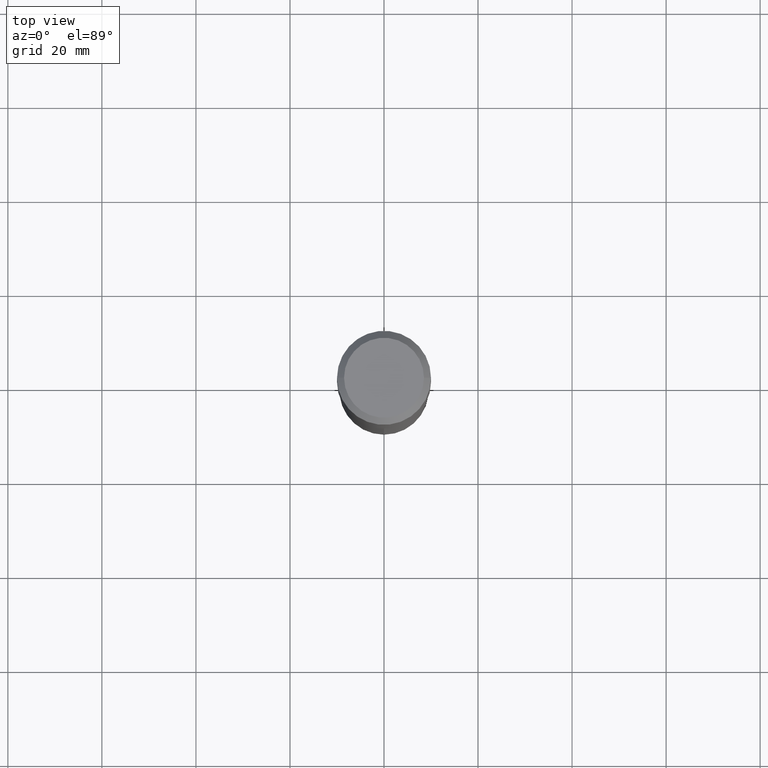
[diagram: clean part render]
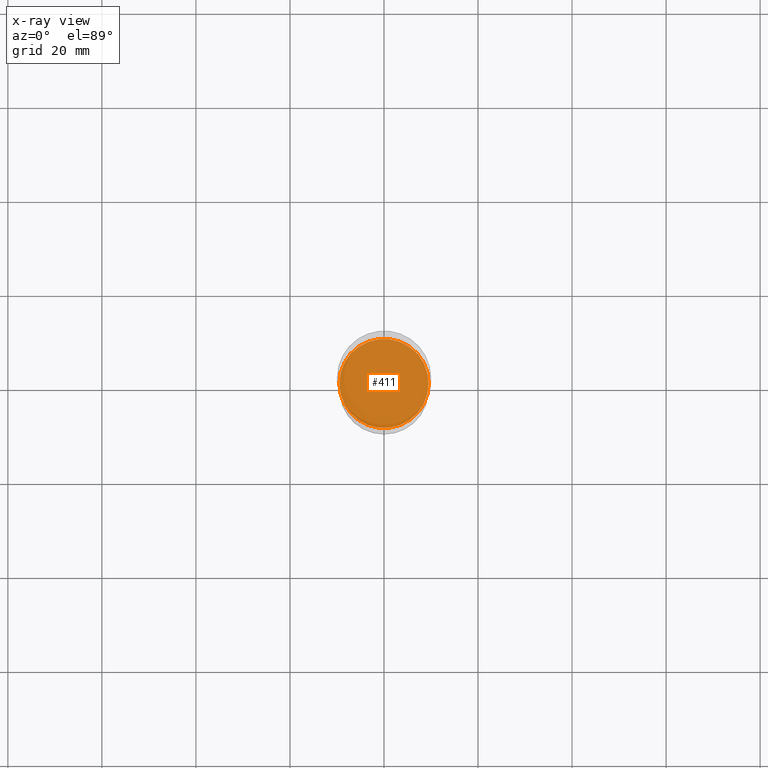
[diagram: x-ray — body ghosted, one internal face saturated and labeled with its STEP entity id]
A machine part, top view, then the same camera in x-ray: the body is ghosted and one INTERNAL B-rep face — a face not visible from any outside direction — is saturated and labeled: STEP entity #411.
In plain terms, the highlighted planar face has unit normal (-0, 0, 1).
Its self-contained STEP definition (entity closure, byte-faithful):
#9 = ORIENTED_EDGE ( 'NONE', *, *, #463, .F. ) ;
#17 = AXIS2_PLACEMENT_3D ( 'NONE', #111, #467, #56 ) ;
#32 = DIRECTION ( 'NONE',  ( -2.438088387897960049E-29, 3.491481338843145188E-15, 1.000000000000000000 ) ) ;
#56 = DIRECTION ( 'NONE',  ( 1.000000000000000000, -6.982962677686265922E-15, 0.000000000000000000 ) ) ;
#60 = CARTESIAN_POINT ( 'NONE',  ( -0.3735000000000000542, -7.102862293096273524E-15, -2.795199999999999019 ) ) ;
#70 = DIRECTION ( 'NONE',  ( 1.000000000000000000, -6.982962677686265922E-15, 0.000000000000000000 ) ) ;
#99 = DIRECTION ( 'NONE',  ( 1.000000000000000000, -6.982962677686265922E-15, 4.876176775795935793E-29 ) ) ;
#104 = FACE_OUTER_BOUND ( 'NONE', #128, .T. ) ;
#111 = CARTESIAN_POINT ( 'NONE',  ( 6.835574407048691801E-29, -9.759388638334358515E-15, -2.795199999999999019 ) ) ;
#123 = VERTEX_POINT ( 'NONE', #219 ) ;
#128 = EDGE_LOOP ( 'NONE', ( #183, #9 ) ) ;
#150 = DIRECTION ( 'NONE',  ( -2.445468806185136597E-29, 3.491481338843145583E-15, 1.000000000000000000 ) ) ;
#183 = ORIENTED_EDGE ( 'NONE', *, *, #298, .F. ) ;
#219 = CARTESIAN_POINT ( 'NONE',  ( 0.3735000000000000542, -1.236752519845017793E-14, -2.795199999999999019 ) ) ;
#298 = EDGE_CURVE ( 'NONE', #123, #305, #457, .T. ) ;
#305 = VERTEX_POINT ( 'NONE', #60 ) ;
#358 = PLANE ( 'NONE',  #383 ) ;
#383 = AXIS2_PLACEMENT_3D ( 'NONE', #475, #32, #99 ) ;
#411 = ADVANCED_FACE ( 'NONE', ( #104 ), #358, .F. ) ;
#451 = CARTESIAN_POINT ( 'NONE',  ( 6.835574407048691801E-29, -9.759388638334358515E-15, -2.795199999999999019 ) ) ;
#457 = CIRCLE ( 'NONE', #17, 0.3735000000000000542 ) ;
#463 = EDGE_CURVE ( 'NONE', #305, #123, #483, .T. ) ;
#467 = DIRECTION ( 'NONE',  ( -2.445468806185136597E-29, 3.491481338843145583E-15, 1.000000000000000000 ) ) ;
#473 = AXIS2_PLACEMENT_3D ( 'NONE', #451, #150, #70 ) ;
#475 = CARTESIAN_POINT ( 'NONE',  ( 9.690853258028445413E-29, -5.670466811351576494E-15, -2.795199999999999907 ) ) ;
#483 = CIRCLE ( 'NONE', #473, 0.3735000000000000542 ) ;